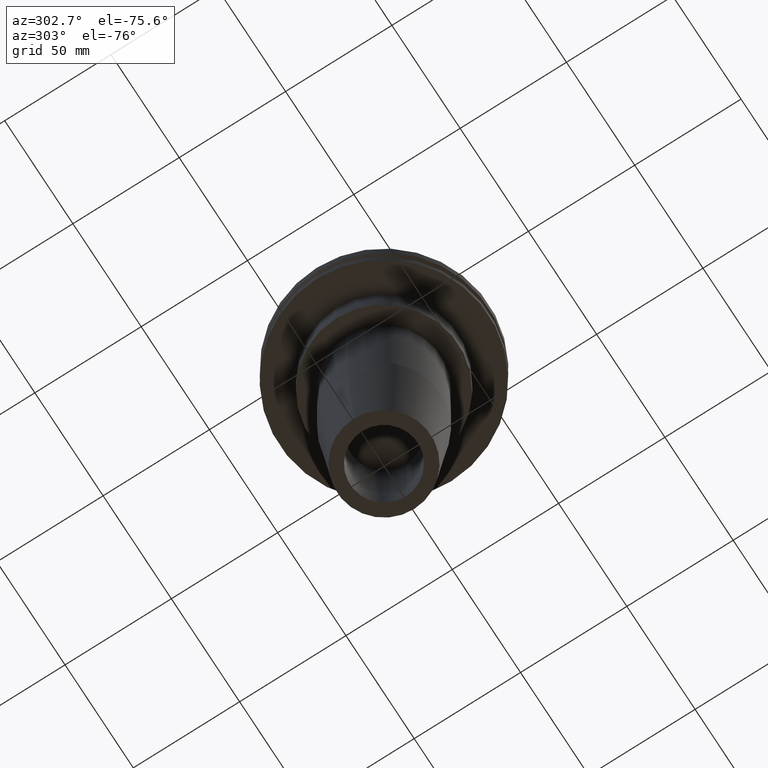
[diagram: clean part render]
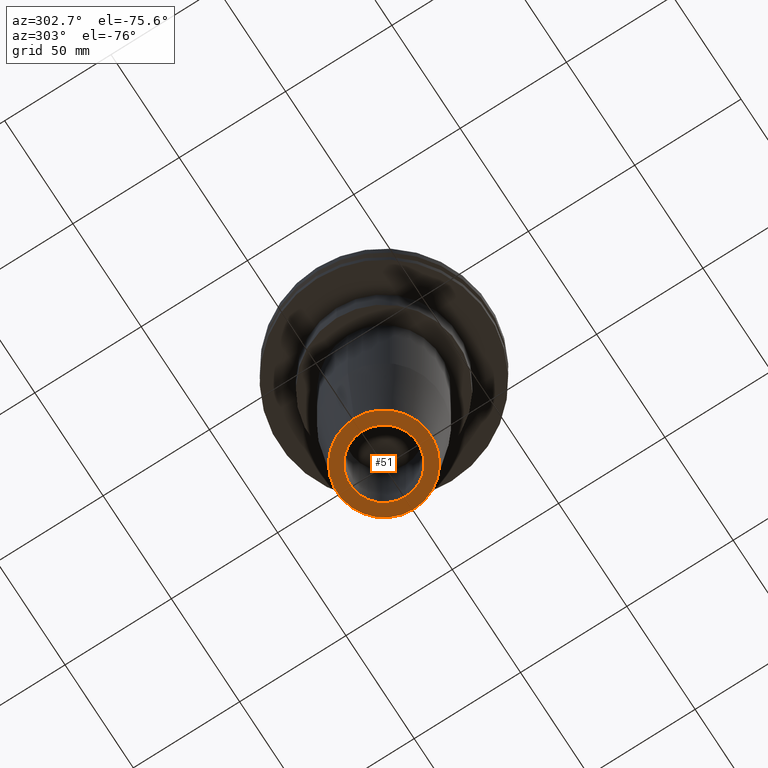
[diagram: same view with one face highlighted and labeled with its STEP entity id]
A machine part, auxiliary view. The second image highlights one B-rep face of the part: STEP entity #51.
In plain terms, the highlighted planar face has unit normal (0, -0, 1).
Its self-contained STEP definition (entity closure, byte-faithful):
#51 = ADVANCED_FACE ( 'NONE', ( #675, #141 ), #83, .F. ) ;
#60 = AXIS2_PLACEMENT_3D ( 'NONE', #660, #275, #542 ) ;
#61 = ORIENTED_EDGE ( 'NONE', *, *, #183, .F. ) ;
#83 = PLANE ( 'NONE',  #302 ) ;
#90 = AXIS2_PLACEMENT_3D ( 'NONE', #184, #772, #439 ) ;
#92 = EDGE_CURVE ( 'NONE', #249, #615, #586, .T. ) ;
#97 = ORIENTED_EDGE ( 'NONE', *, *, #365, .T. ) ;
#102 = VERTEX_POINT ( 'NONE', #307 ) ;
#123 = EDGE_LOOP ( 'NONE', ( #570, #61 ) ) ;
#141 = FACE_BOUND ( 'NONE', #254, .T. ) ;
#177 = CARTESIAN_POINT ( 'NONE',  ( 0.000000000000000000, 0.000000000000000000, -152.4000000000000057 ) ) ;
#183 = EDGE_CURVE ( 'NONE', #799, #102, #641, .T. ) ;
#184 = CARTESIAN_POINT ( 'NONE',  ( 0.000000000000000000, 0.000000000000000000, -152.4000000000000057 ) ) ;
#202 = CARTESIAN_POINT ( 'NONE',  ( 15.87500000000000711, 0.000000000000000000, -152.4000000000000057 ) ) ;
#216 = CIRCLE ( 'NONE', #457, 22.00000000000000000 ) ;
#222 = ORIENTED_EDGE ( 'NONE', *, *, #92, .T. ) ;
#249 = VERTEX_POINT ( 'NONE', #589 ) ;
#254 = EDGE_LOOP ( 'NONE', ( #97, #222 ) ) ;
#275 = DIRECTION ( 'NONE',  ( -0.000000000000000000, -0.000000000000000000, 1.000000000000000000 ) ) ;
#290 = DIRECTION ( 'NONE',  ( 0.000000000000000000, -0.000000000000000000, 1.000000000000000000 ) ) ;
#302 = AXIS2_PLACEMENT_3D ( 'NONE', #401, #290, #352 ) ;
#307 = CARTESIAN_POINT ( 'NONE',  ( 22.00000000000000000, 0.000000000000000000, -152.4000000000000057 ) ) ;
#352 = DIRECTION ( 'NONE',  ( 1.000000000000000000, 0.000000000000000000, 0.000000000000000000 ) ) ;
#365 = EDGE_CURVE ( 'NONE', #615, #249, #803, .T. ) ;
#401 = CARTESIAN_POINT ( 'NONE',  ( 0.000000000000000000, 22.00000000000000000, -152.4000000000000057 ) ) ;
#422 = EDGE_CURVE ( 'NONE', #102, #799, #216, .T. ) ;
#439 = DIRECTION ( 'NONE',  ( 1.000000000000000000, 0.000000000000000000, 0.000000000000000000 ) ) ;
#457 = AXIS2_PLACEMENT_3D ( 'NONE', #731, #529, #796 ) ;
#472 = CARTESIAN_POINT ( 'NONE',  ( -22.00000000000000000, 2.969768487932331287E-15, -152.4000000000000057 ) ) ;
#529 = DIRECTION ( 'NONE',  ( -0.000000000000000000, -0.000000000000000000, 1.000000000000000000 ) ) ;
#542 = DIRECTION ( 'NONE',  ( 1.000000000000000000, 0.000000000000000000, 0.000000000000000000 ) ) ;
#570 = ORIENTED_EDGE ( 'NONE', *, *, #422, .F. ) ;
#586 = CIRCLE ( 'NONE', #90, 15.87500000000000711 ) ;
#589 = CARTESIAN_POINT ( 'NONE',  ( -15.87500000000000711, 1.944126793646425210E-15, -152.4000000000000057 ) ) ;
#615 = VERTEX_POINT ( 'NONE', #202 ) ;
#641 = CIRCLE ( 'NONE', #683, 22.00000000000000000 ) ;
#660 = CARTESIAN_POINT ( 'NONE',  ( 0.000000000000000000, 0.000000000000000000, -152.4000000000000057 ) ) ;
#675 = FACE_OUTER_BOUND ( 'NONE', #123, .T. ) ;
#683 = AXIS2_PLACEMENT_3D ( 'NONE', #177, #815, #821 ) ;
#731 = CARTESIAN_POINT ( 'NONE',  ( 0.000000000000000000, 0.000000000000000000, -152.4000000000000057 ) ) ;
#772 = DIRECTION ( 'NONE',  ( -0.000000000000000000, -0.000000000000000000, 1.000000000000000000 ) ) ;
#796 = DIRECTION ( 'NONE',  ( 1.000000000000000000, 0.000000000000000000, 0.000000000000000000 ) ) ;
#799 = VERTEX_POINT ( 'NONE', #472 ) ;
#803 = CIRCLE ( 'NONE', #60, 15.87500000000000711 ) ;
#815 = DIRECTION ( 'NONE',  ( -0.000000000000000000, -0.000000000000000000, 1.000000000000000000 ) ) ;
#821 = DIRECTION ( 'NONE',  ( 1.000000000000000000, 0.000000000000000000, 0.000000000000000000 ) ) ;